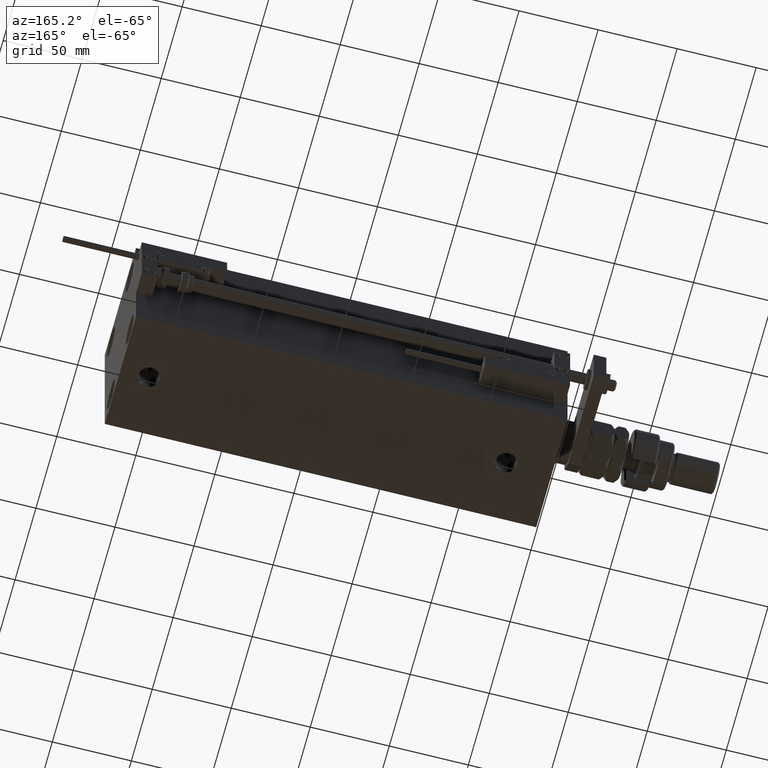
[diagram: clean part render]
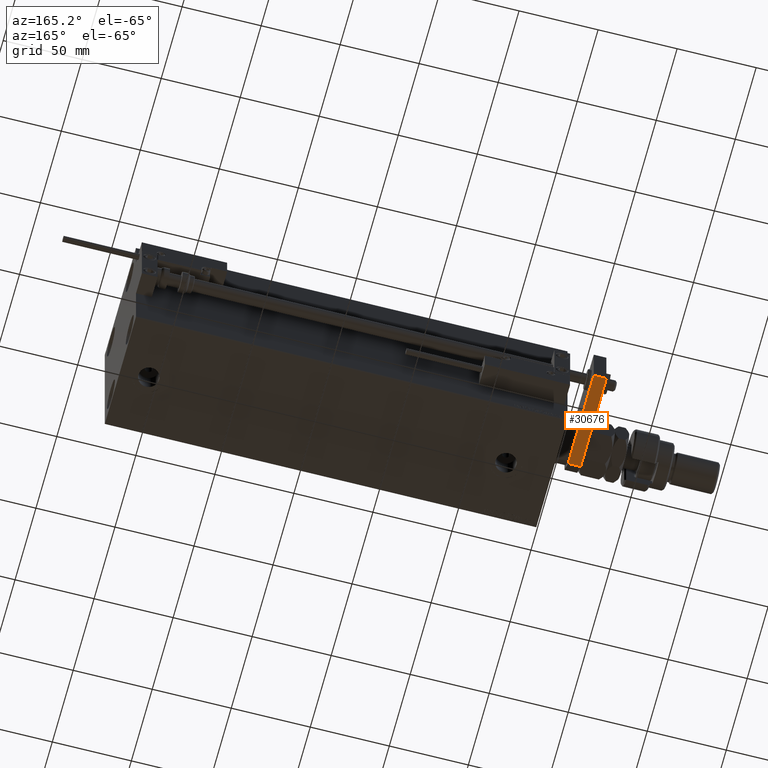
[diagram: same view with one face highlighted and labeled with its STEP entity id]
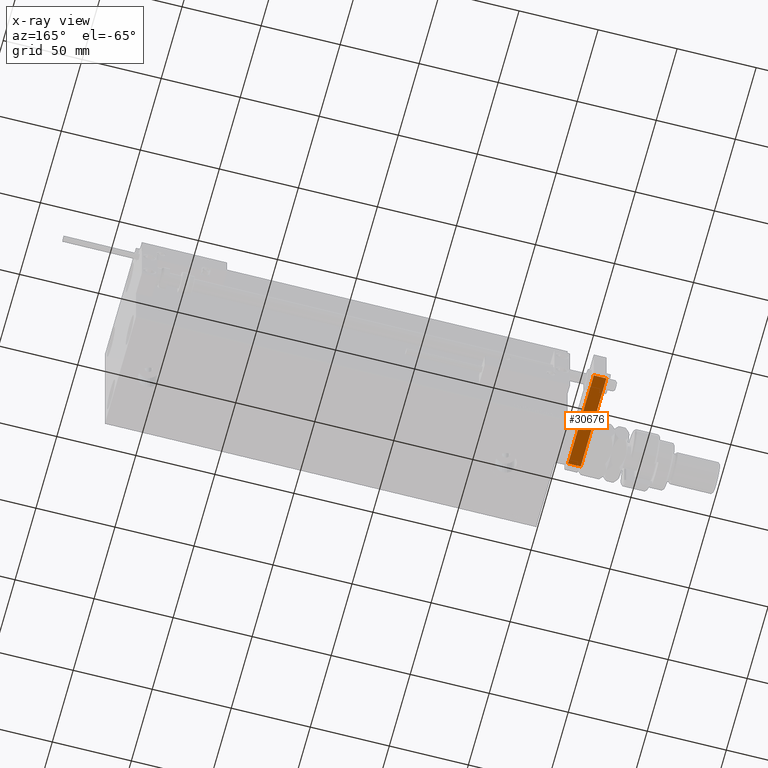
[diagram: x-ray of the same camera — body ghosted, the highlighted face saturated]
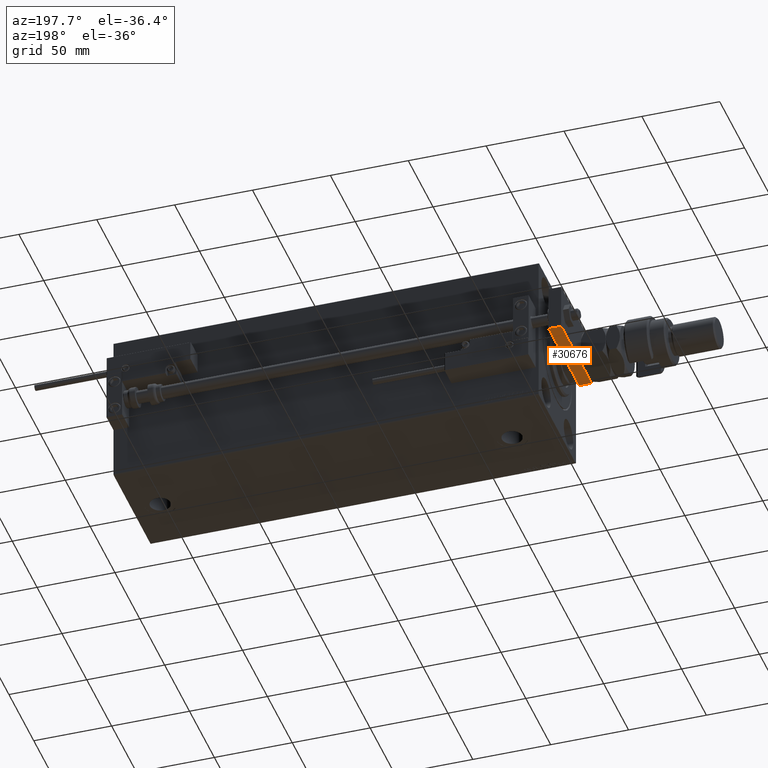
[diagram: same view with one face highlighted and labeled with its STEP entity id]
A machine part, auxiliary view. The second image highlights one B-rep face of the part: STEP entity #30676.
The next image is the same camera in x-ray: the body ghosted, the highlighted face saturated — about 0% of this face is hidden behind the body in this view.
A second angle (auxiliary view) of the same face is appended — the face is thin or edge-on in the first view.
In plain terms, the highlighted planar face has unit normal (0, -0, 1).
Its self-contained STEP definition (entity closure, byte-faithful):
#2367 = DIRECTION ( 'NONE',  ( -0.000000000000000000, -0.000000000000000000, -1.000000000000000000 ) ) ;
#2405 = CARTESIAN_POINT ( 'NONE',  ( -15.00000000000000355, 8.500000000000028422, 8.000000000000000000 ) ) ;
#5674 = CARTESIAN_POINT ( 'NONE',  ( -15.00000000000000355, 8.500000000000028422, 8.000000000000000000 ) ) ;
#6940 = CARTESIAN_POINT ( 'NONE',  ( -14.99999999999999822, 70.00000000000000000, 8.000000000000000000 ) ) ;
#7134 = VECTOR ( 'NONE', #2367, 1000.000000000000000 ) ;
#7208 = LINE ( 'NONE', #6940, #30577 ) ;
#7292 = AXIS2_PLACEMENT_3D ( 'NONE', #48785, #11038, #27851 ) ;
#8106 = ORIENTED_EDGE ( 'NONE', *, *, #11733, .F. ) ;
#8313 = VECTOR ( 'NONE', #44850, 1000.000000000000000 ) ;
#8554 = EDGE_LOOP ( 'NONE', ( #30864, #33515, #8106, #46863 ) ) ;
#11038 = DIRECTION ( 'NONE',  ( 1.000000000000000000, -7.434529182757744162E-17, 0.000000000000000000 ) ) ;
#11733 = EDGE_CURVE ( 'NONE', #33371, #53118, #7208, .T. ) ;
#11764 = LINE ( 'NONE', #2405, #8313 ) ;
#13337 = EDGE_CURVE ( 'NONE', #54139, #53118, #11764, .T. ) ;
#15588 = LINE ( 'NONE', #48935, #7134 ) ;
#20446 = EDGE_CURVE ( 'NONE', #52080, #54139, #48897, .T. ) ;
#21704 = CARTESIAN_POINT ( 'NONE',  ( -14.99999999999999822, 70.00000000000000000, 0.000000000000000000 ) ) ;
#23989 = PLANE ( 'NONE',  #7292 ) ;
#27851 = DIRECTION ( 'NONE',  ( 7.434529182757744162E-17, 1.000000000000000000, 0.000000000000000000 ) ) ;
#30577 = VECTOR ( 'NONE', #36158, 1000.000000000000000 ) ;
#30676 = ADVANCED_FACE ( 'NONE', ( #53197 ), #23989, .F. ) ;
#30864 = ORIENTED_EDGE ( 'NONE', *, *, #20446, .T. ) ;
#32764 = CARTESIAN_POINT ( 'NONE',  ( -14.99999999999999822, 70.00000000000000000, 8.000000000000000000 ) ) ;
#33371 = VERTEX_POINT ( 'NONE', #32764 ) ;
#33515 = ORIENTED_EDGE ( 'NONE', *, *, #13337, .T. ) ;
#36158 = DIRECTION ( 'NONE',  ( -7.434529182757744162E-17, -1.000000000000000000, 0.000000000000000000 ) ) ;
#37567 = CARTESIAN_POINT ( 'NONE',  ( -14.99999999999999822, 70.00000000000000000, 0.000000000000000000 ) ) ;
#41443 = DIRECTION ( 'NONE',  ( -7.434529182757744162E-17, -1.000000000000000000, 0.000000000000000000 ) ) ;
#42029 = CARTESIAN_POINT ( 'NONE',  ( -15.00000000000000355, 8.500000000000028422, 0.000000000000000000 ) ) ;
#44850 = DIRECTION ( 'NONE',  ( 0.000000000000000000, 0.000000000000000000, 1.000000000000000000 ) ) ;
#46863 = ORIENTED_EDGE ( 'NONE', *, *, #50516, .T. ) ;
#48408 = VECTOR ( 'NONE', #41443, 1000.000000000000000 ) ;
#48785 = CARTESIAN_POINT ( 'NONE',  ( -14.99999999999999822, 70.00000000000000000, 8.000000000000000000 ) ) ;
#48897 = LINE ( 'NONE', #37567, #48408 ) ;
#48935 = CARTESIAN_POINT ( 'NONE',  ( -14.99999999999999822, 70.00000000000000000, 8.000000000000000000 ) ) ;
#50516 = EDGE_CURVE ( 'NONE', #33371, #52080, #15588, .T. ) ;
#52080 = VERTEX_POINT ( 'NONE', #21704 ) ;
#53118 = VERTEX_POINT ( 'NONE', #5674 ) ;
#53197 = FACE_OUTER_BOUND ( 'NONE', #8554, .T. ) ;
#54139 = VERTEX_POINT ( 'NONE', #42029 ) ;